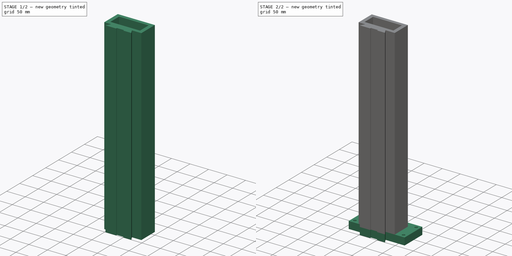
[diagram: build sequence overview — one tinted view per stage of 2, left to right]
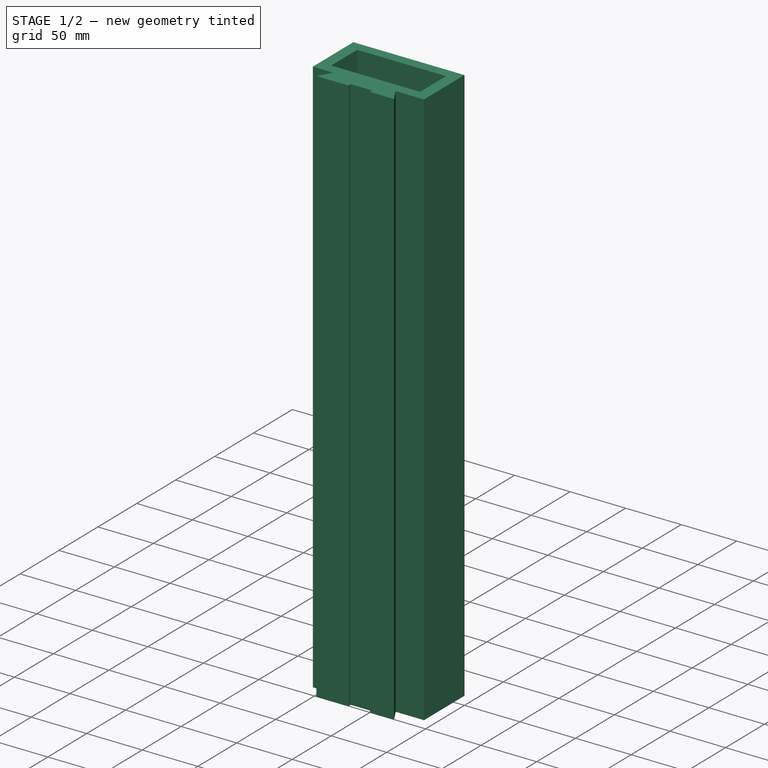
[diagram: stage 1 of 2 — iso view after this stage's code; geometry added in this stage tinted green]
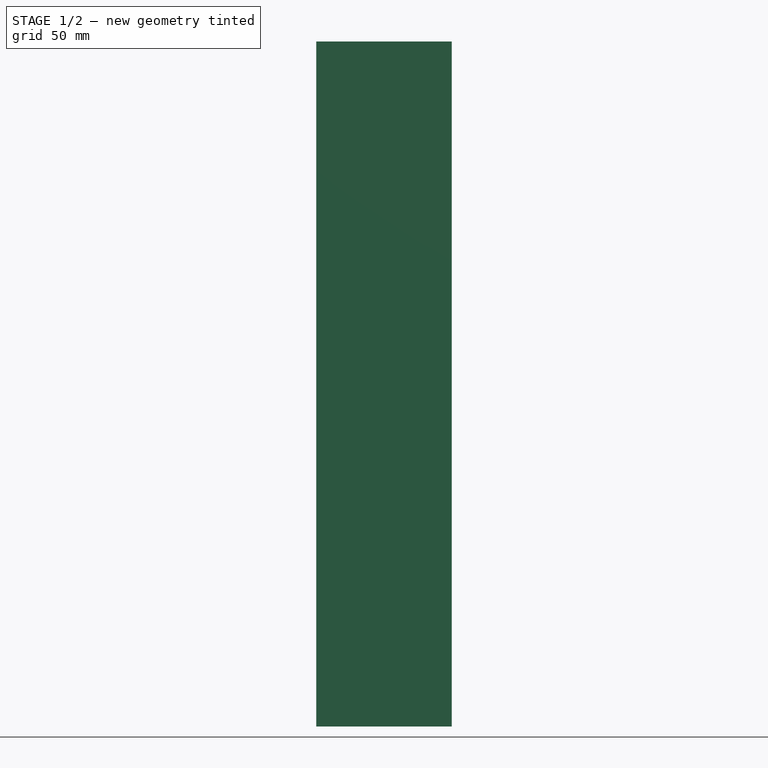
[diagram: stage 1 of 2 — front view after this stage's code; geometry added in this stage tinted green]
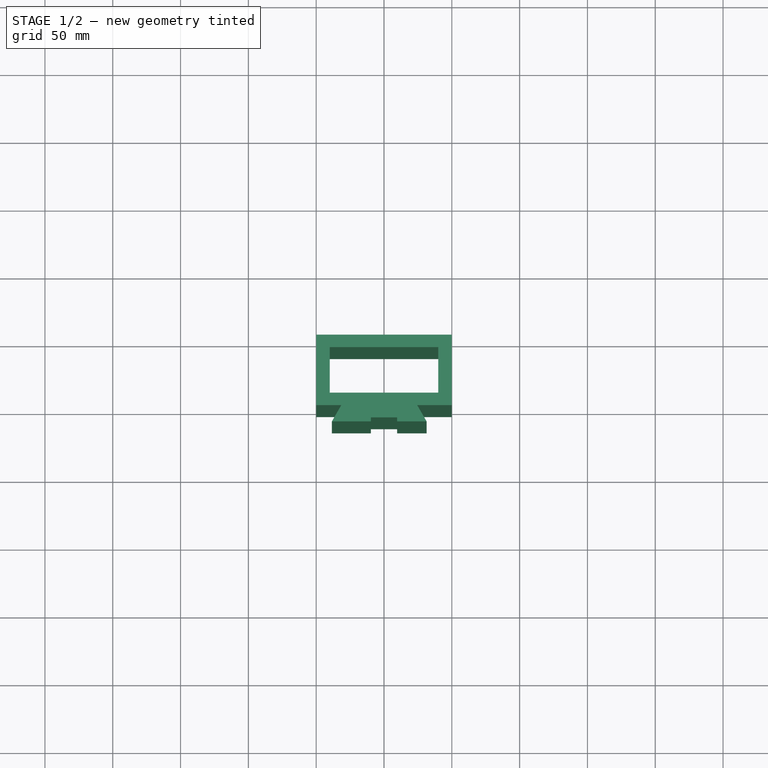
[diagram: stage 1 of 2 — top view after this stage's code; geometry added in this stage tinted green]
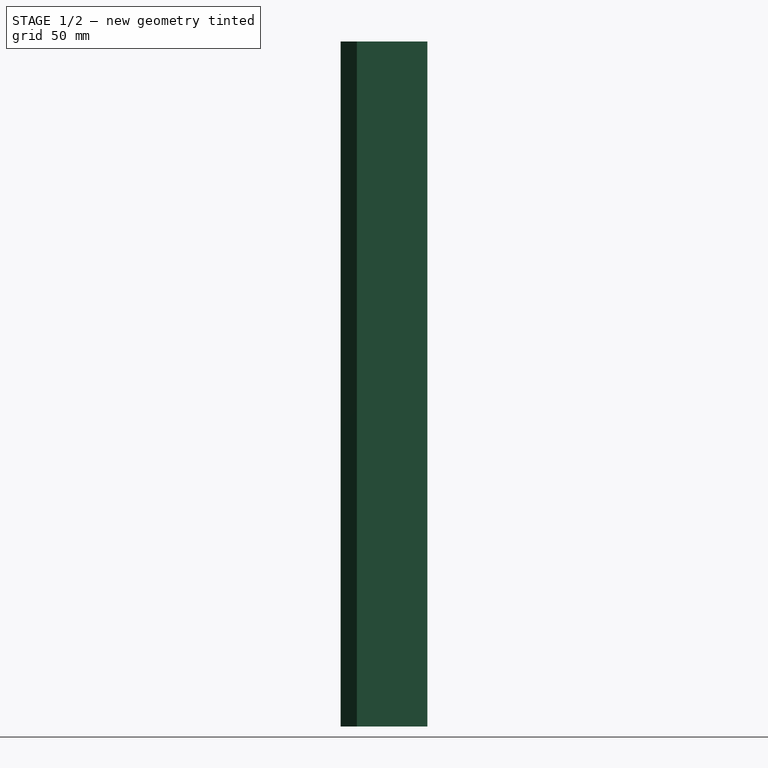
[diagram: stage 1 of 2 — right view after this stage's code; geometry added in this stage tinted green]
FCSTD DOCUMENT  (FreeCAD 0.16R5602 (Git))
Label: Column-99
License: All rights reserved
LicenseURL: http://en.wikipedia.org/wiki/All_rights_reserved
objects: Sketcher::SketchObject×2, PartDesign::Pad×2
note: 6 computed .brp shape members not serialized (recipe doc carries the construction recipe); baked Part::Feature solids carry a one-line shape summary decoded from their .brp

FEATURE [Sketcher::SketchObject] Sketch002  label="Sketch"
  sketch-geometry (16):
    g0: LineSegment StartX=-50 StartY=0 StartZ=0 EndX=50 EndY=0 EndZ=0
    g1: LineSegment StartX=50 StartY=0 StartZ=0 EndX=50 EndY=-52 EndZ=0
    g2: LineSegment StartX=50 StartY=-52 StartZ=0 EndX=24.5 EndY=-52 EndZ=0
    g3: LineSegment StartX=24.5 StartY=-52 StartZ=0 EndX=31.4282 EndY=-64 EndZ=0
    g4: LineSegment StartX=31.4282 StartY=-64 StartZ=0 EndX=9.65 EndY=-64 EndZ=0
    g5: LineSegment StartX=-9.65 StartY=-64 StartZ=0 EndX=-38.4282 EndY=-64 EndZ=0
    g6: LineSegment StartX=-38.4282 StartY=-64 StartZ=0 EndX=-31.5 EndY=-52 EndZ=0
    g7: LineSegment StartX=-31.5 StartY=-52 StartZ=0 EndX=-50 EndY=-52 EndZ=0
    g8: LineSegment StartX=-50 StartY=-52 StartZ=0 EndX=-50 EndY=0 EndZ=0
    g9: LineSegment StartX=-9.65 StartY=-64 StartZ=0 EndX=-9.65 EndY=-61 EndZ=0
    g10: LineSegment StartX=-9.65 StartY=-61 StartZ=0 EndX=9.65 EndY=-61 EndZ=0
    g11: LineSegment StartX=9.65 StartY=-61 StartZ=0 EndX=9.65 EndY=-64 EndZ=0
    g12: LineSegment StartX=-40 StartY=-9.25 StartZ=0 EndX=40 EndY=-9.25 EndZ=0
    g13: LineSegment StartX=40 StartY=-9.25 StartZ=0 EndX=40 EndY=-42.75 EndZ=0
    g14: LineSegment StartX=40 StartY=-42.75 StartZ=0 EndX=-40 EndY=-42.75 EndZ=0
    g15: LineSegment StartX=-40 StartY=-42.75 StartZ=0 EndX=-40 EndY=-9.25 EndZ=0
  constraints (48):
    c: Coincident(g0,g1)
    c: Vertical(g1)
    c: Coincident(g1,g2)
    c: Coincident(g2,g3)
    c: Coincident(g3,g4)
    c: Horizontal(g4)
    c: Horizontal(g5)
    c: Coincident(g5,g6)
    c: Coincident(g6,g7)
    c: Horizontal(g7)
    c: Coincident(g7,g8)
    c: Vertical(g8)
    c: Coincident(g0,g8)
    c: Horizontal(g2)
    c: Distance(g0) = 100
    c: Equal(g8,g1)
    c: Distance(g1) = 52
    c: Angle(g3) = -1.0472
    c: Angle(g6) = 1.0472
    c: Symmetric(g0,g0,g-2)
    c: Vertical(g9)
    c: Coincident(g9,g10)
    c: Horizontal(g10)
    c: Coincident(g10,g11)
    c: Vertical(g11)
    c: Coincident(g11,g4)
    c: Distance(g11) = 3
    c: Distance(g10) = 19.3
    c: Distance(g3,g2) = 12
    c: PointOnObject(g-1,g0)
    c: Coincident(g9,g5)
    c: Vertical(g13)
    c: Horizontal(g14)
    c: Vertical(g15)
    c: Coincident(g15,g12)
    c: Coincident(g13,g12)
    c: Coincident(g14,g13)
    c: Coincident(g14,g15)
    c: DistanceX(g12,g12) = 80
    c: DistanceY(g12,g14) = -33.5
    c: Equal(g15,g13)
    c: Equal(g14,g12)
    c: Symmetric(g12,g12,g-2)
    c: DistanceY(g12,g0) = 9.25
    c: Symmetric(g10,g9,g-2)
    c: DistanceY(g5,g7) = 12
    c: DistanceX(g7,g6) = 18.5
    c: DistanceX(g6,g2) = 56
FEATURE [PartDesign::Pad] Pad
  Length = 505
  Length2 = 100
  Sketch = -> Sketch002
  Type = 0
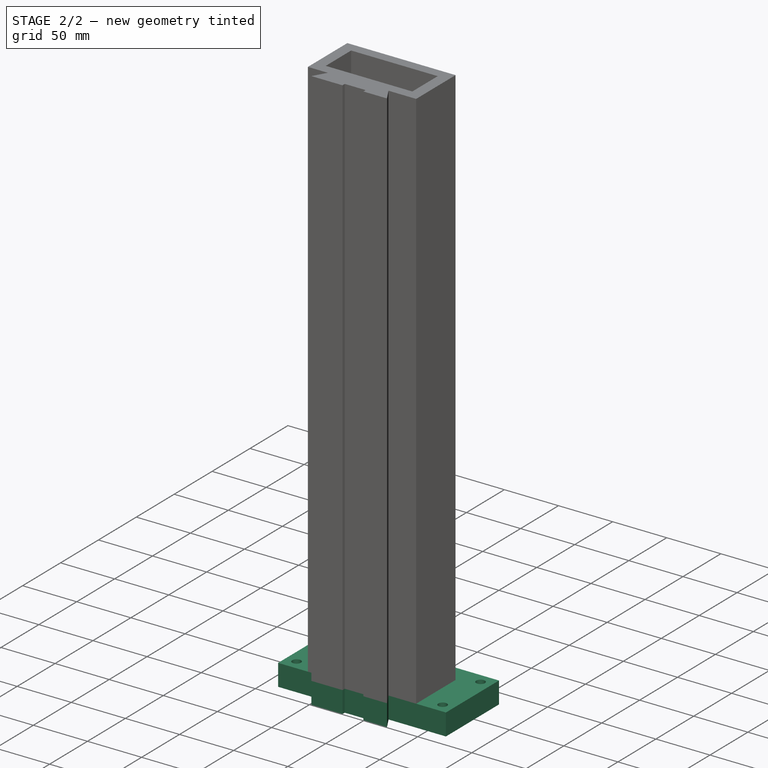
[diagram: stage 2 of 2 — iso view after this stage's code; geometry added in this stage tinted green]
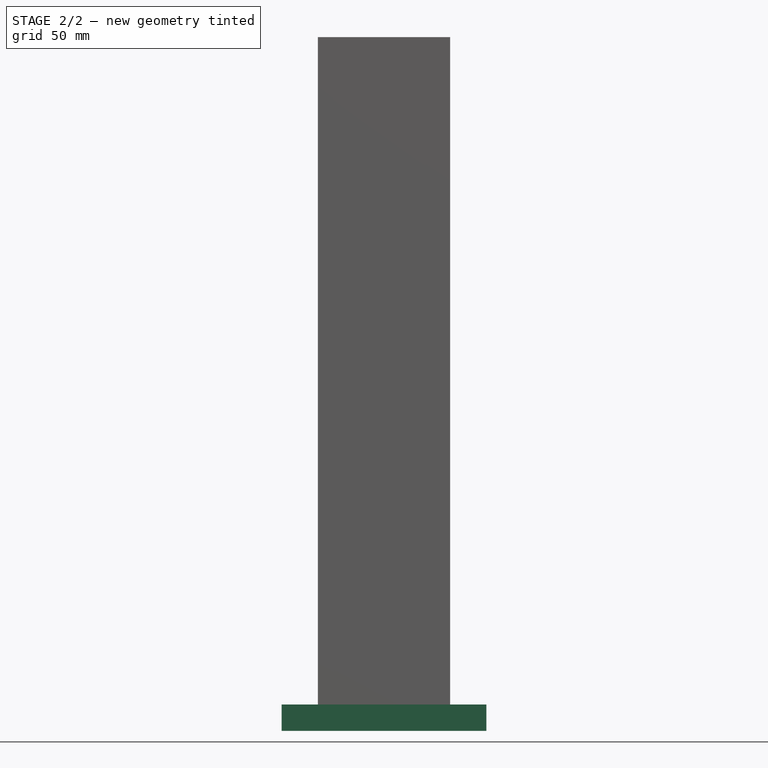
[diagram: stage 2 of 2 — front view after this stage's code; geometry added in this stage tinted green]
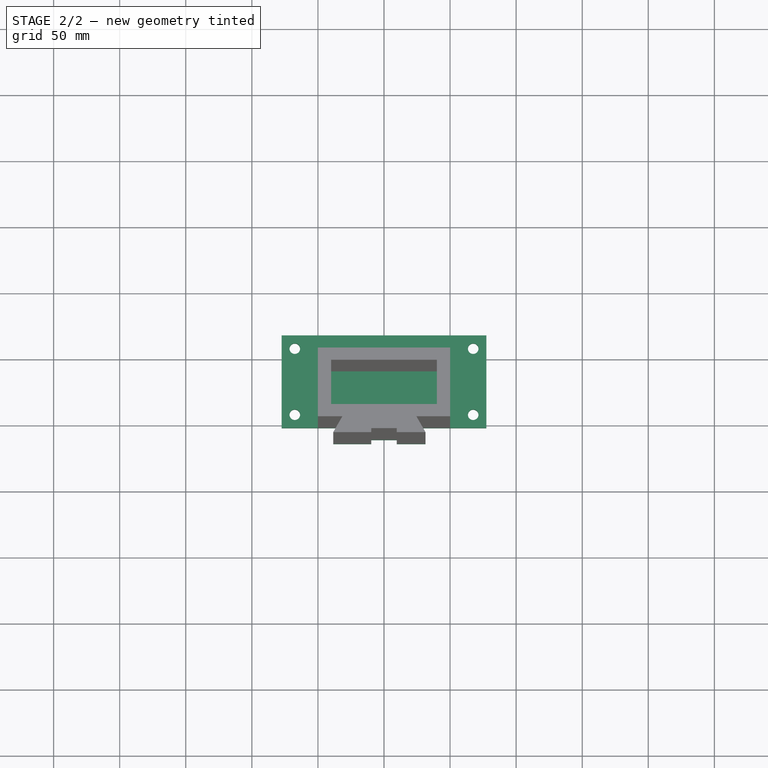
[diagram: stage 2 of 2 — top view after this stage's code; geometry added in this stage tinted green]
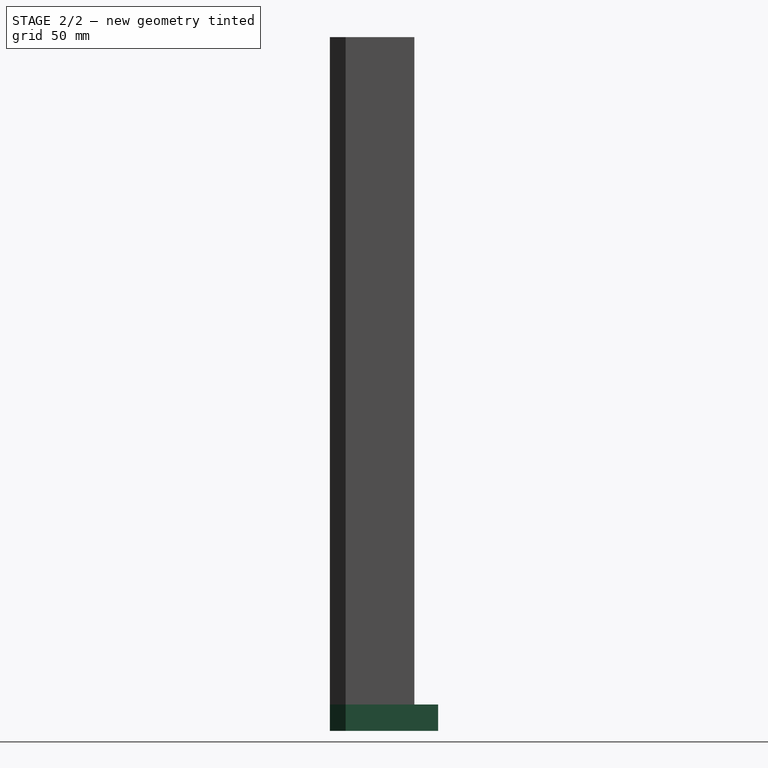
[diagram: stage 2 of 2 — right view after this stage's code; geometry added in this stage tinted green]
FEATURE [Sketcher::SketchObject] Sketch001
  Placement = pos=(0,0,0) rot=(1,0,0;3.14159rad)
  Support = -> Pad [Face17]
  sketch-geometry (16):
    g0: LineSegment StartX=77.5 StartY=52 StartZ=0 EndX=77.5 EndY=-18 EndZ=0
    g1: LineSegment StartX=77.5 StartY=-18 StartZ=0 EndX=-77.5 EndY=-18 EndZ=0
    g2: LineSegment StartX=-77.5 StartY=-18 StartZ=0 EndX=-77.5 EndY=52 EndZ=0
    g3: Circle CenterX=-67.5 CenterY=42 CenterZ=0 NormalX=0 NormalY=0 NormalZ=1 Radius=4
    g4: Circle CenterX=-67.5 CenterY=-8 CenterZ=0 NormalX=0 NormalY=0 NormalZ=1 Radius=4
    g5: Circle CenterX=67.5 CenterY=42 CenterZ=0 NormalX=0 NormalY=0 NormalZ=1 Radius=4
    g6: Circle CenterX=67.5 CenterY=-8 CenterZ=0 NormalX=0 NormalY=0 NormalZ=1 Radius=4
    g7: LineSegment StartX=-77.5 StartY=52 StartZ=0 EndX=-31.5 EndY=52 EndZ=0
    g8: LineSegment StartX=-31.5 StartY=52 StartZ=0 EndX=-38.4282 EndY=64 EndZ=0
    g9: LineSegment StartX=-38.4282 StartY=64 StartZ=0 EndX=-9.65 EndY=64 EndZ=0
    g10: LineSegment StartX=-9.65 StartY=64 StartZ=0 EndX=-9.65 EndY=61 EndZ=0
    g11: LineSegment StartX=-9.65 StartY=61 StartZ=0 EndX=9.65 EndY=61 EndZ=0
    g12: LineSegment StartX=9.65 StartY=61 StartZ=0 EndX=9.65 EndY=64 EndZ=0
    g13: LineSegment StartX=9.65 StartY=64 StartZ=0 EndX=31.4282 EndY=64 EndZ=0
    g14: LineSegment StartX=31.4282 StartY=64 StartZ=0 EndX=24.5 EndY=52 EndZ=0
    g15: LineSegment StartX=24.5 StartY=52 StartZ=0 EndX=77.5 EndY=52 EndZ=0
  constraints (48):
    c: Vertical(g0)
    c: Horizontal(g1)
    c: Coincident(g1,g2)
    c: Vertical(g2)
    c: Equal(g2,g0)
    c: Distance(g0) = 70
    c: Symmetric(g0,g2,g-2)
    c: DistanceY(g-1,g2) = 52
    c: Radius(g3) = 4
    c: Equal(g3,g4)
    c: Equal(g3,g5)
    c: Equal(g3,g6)
    c: DistanceY(g3,g4) = -50
    c: DistanceY(g6,g5) = 50
    c: DistanceX(g6,g0) = 10
    c: DistanceX(g3,g2) = -10
    c: DistanceX(g4,g1) = -10
    c: DistanceY(g5,g0) = 10
    c: DistanceY(g3,g2) = 10
    c: DistanceX(g3,g5) = 135
    c: Coincident(g7,g8)
    c: Coincident(g8,g9)
    c: Coincident(g9,g10)
    c: Coincident(g10,g11)
    c: Coincident(g11,g12)
    c: Coincident(g12,g13)
    c: Coincident(g13,g14)
    c: Coincident(g14,g15)
    c: Coincident(g0,g15)
    c: Horizontal(g15)
    c: Angle(g15,g14) = 1.0472
    c: Horizontal(g11)
    c: Vertical(g12)
    c: Horizontal(g13)
    c: Vertical(g10)
    c: DistanceY(g11,g12) = 3
    c: DistanceX(g9,g12) = 19.3
    c: Horizontal(g9)
    c: Horizontal(g7)
    c: Angle(g8,g7) = 1.0472
    c: Coincident(g2,g7)
    c: DistanceX(g1,g0) = 155
    c: DistanceY(g2,g8) = 12
    c: Symmetric(g10,g11,g-2)
    c: Equal(g10,g12)
    c: Coincident(g0,g1)
    c: DistanceX(g2,g7) = 46
    c: DistanceX(g7,g14) = 56
FEATURE [PartDesign::Pad] Pad001
  Length = 20
  Length2 = 100
  Sketch = -> Sketch001
  Type = 0
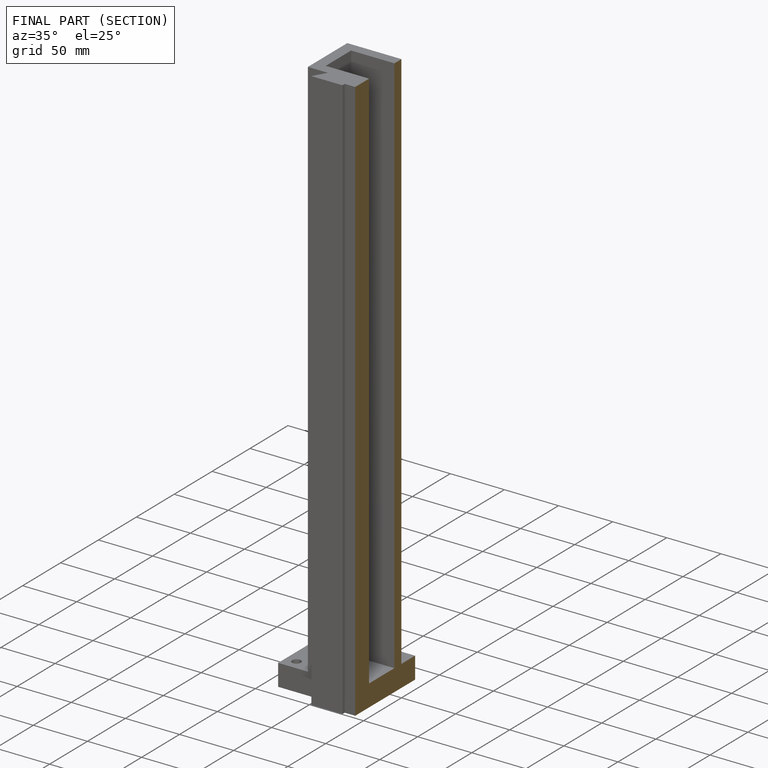
[diagram: finished part — half-section view (interior)]
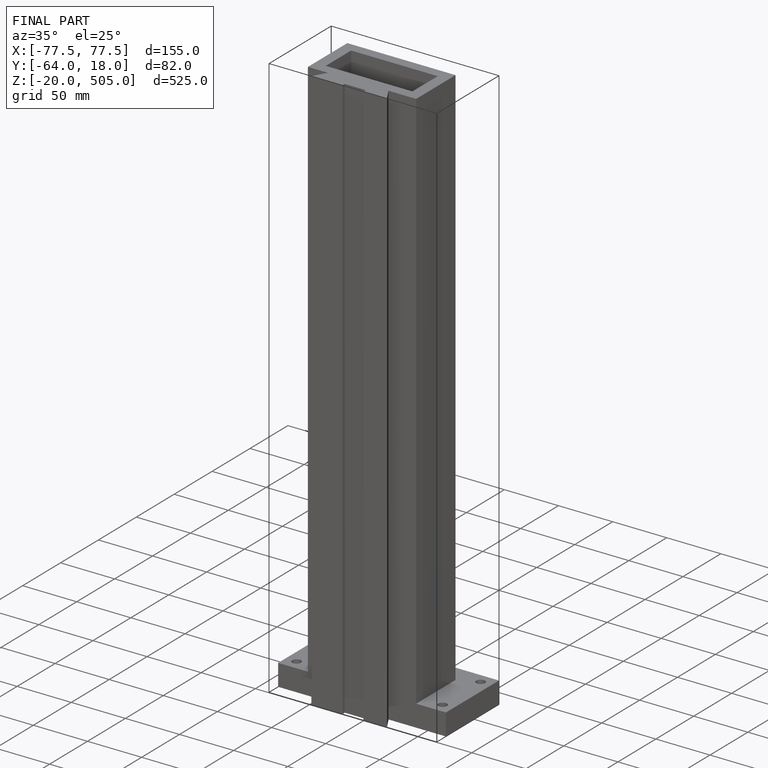
[diagram: finished part — iso view with bounding-box wireframe]
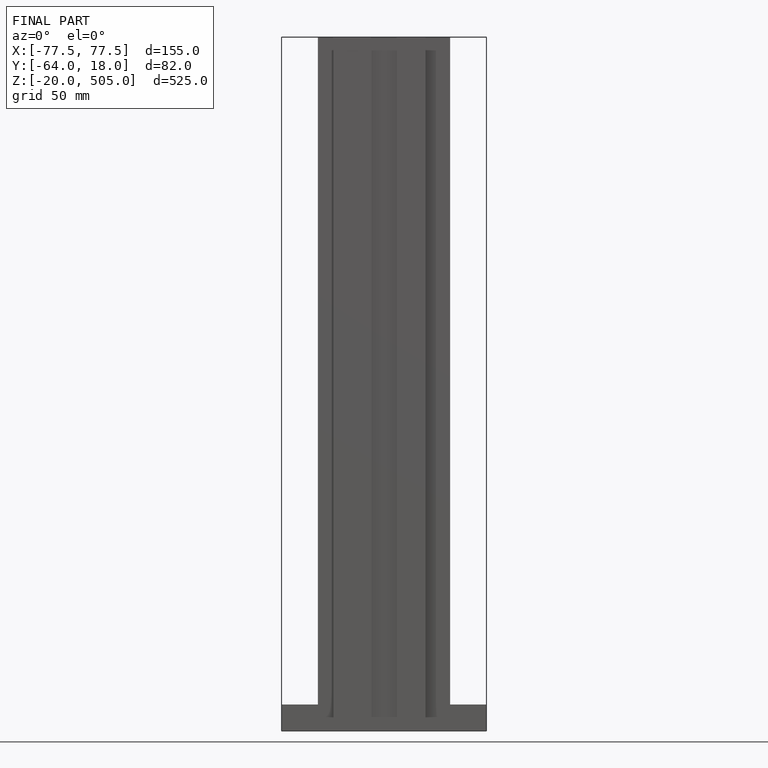
[diagram: finished part — front view with bounding-box wireframe]
